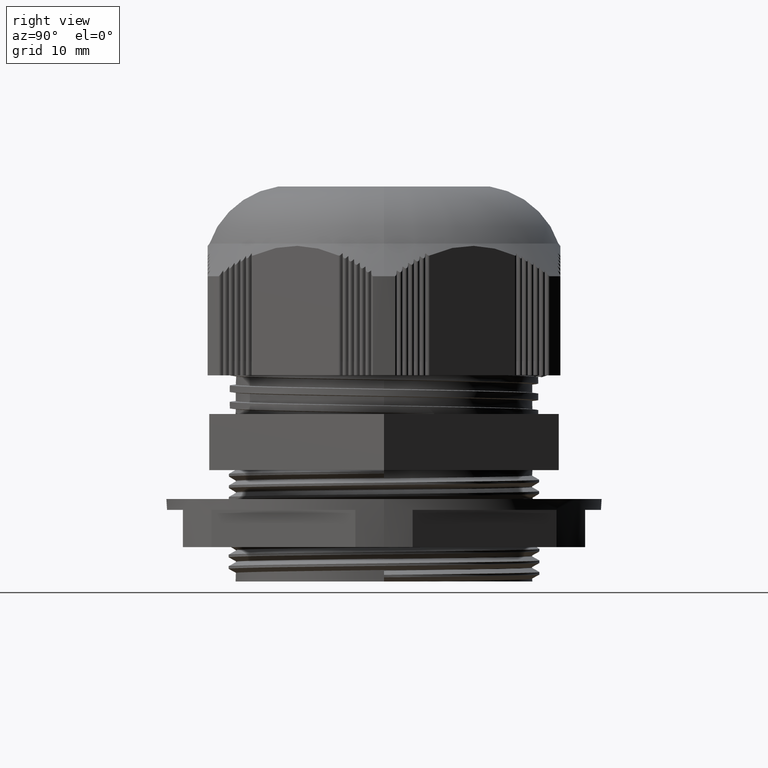
[diagram: clean part render]
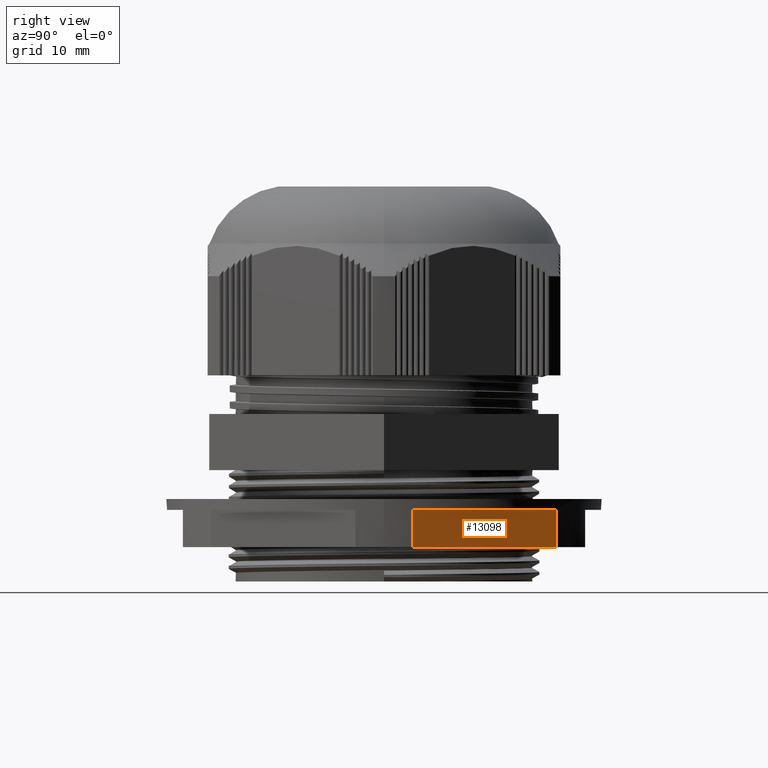
[diagram: same view with one face highlighted and labeled with its STEP entity id]
A machine part, right view. The second image highlights one B-rep face of the part: STEP entity #13098.
In plain terms, the highlighted planar face has unit normal (-0.866, -0.5, 0).
Its self-contained STEP definition (entity closure, byte-faithful):
#644 = CARTESIAN_POINT ( 'NONE',  ( 20.11397323124830200, 26.16157642139759100, 12.51966510091093100 ) ) ;
#652 = LINE ( 'NONE', #644, #9369 ) ;
#693 = DIRECTION ( 'NONE',  ( -0.0000000000000000000, -0.0000000000000000000, -1.000000000000000000 ) ) ;
#3289 = LINE ( 'NONE', #3356, #9306 ) ;
#3340 = DIRECTION ( 'NONE',  ( 0.0000000000000000000, 0.0000000000000000000, 1.000000000000000000 ) ) ;
#3356 = CARTESIAN_POINT ( 'NONE',  ( 32.71357639960244500, 4.338423578602443900, 12.51966510091093100 ) ) ;
#3739 = VERTEX_POINT ( 'NONE', #16673 ) ;
#3740 = VERTEX_POINT ( 'NONE', #16664 ) ;
#3747 = VERTEX_POINT ( 'NONE', #16674 ) ;
#3762 = VERTEX_POINT ( 'NONE', #16666 ) ;
#6707 = DIRECTION ( 'NONE',  ( -0.8660254037844383700, -0.5000000000000004400, 0.0000000000000000000 ) ) ;
#6708 = DIRECTION ( 'NONE',  ( 0.5000000000000004400, -0.8660254037844383700, 0.0000000000000000000 ) ) ;
#6711 = CARTESIAN_POINT ( 'NONE',  ( 35.07402885326977300, 0.2500000000000071600, 12.51966510091093100 ) ) ;
#6738 = PLANE ( 'NONE',  #8899 ) ;
#6757 = FACE_OUTER_BOUND ( 'NONE', #20162, .T. ) ;
#8899 = AXIS2_PLACEMENT_3D ( 'NONE', #6711, #6707, #6708 ) ;
#9306 = VECTOR ( 'NONE', #3340, 1000.000000000000000 ) ;
#9369 = VECTOR ( 'NONE', #693, 1000.000000000000000 ) ;
#13098 = ADVANCED_FACE ( 'NONE', ( #6757 ), #6738, .F. ) ;
#13338 = EDGE_CURVE ( 'NONE', #3740, #3739, #3289, .T. ) ;
#13405 = EDGE_CURVE ( 'NONE', #3762, #3747, #652, .T. ) ;
#13945 = EDGE_CURVE ( 'NONE', #3740, #3747, #22029, .T. ) ;
#13957 = EDGE_CURVE ( 'NONE', #3739, #3762, #22152, .T. ) ;
#16664 = CARTESIAN_POINT ( 'NONE',  ( 32.71357639960244500, 4.338423578602443900, 5.219665100910932900 ) ) ;
#16666 = CARTESIAN_POINT ( 'NONE',  ( 20.11397323124830200, 26.16157642139759400, 10.86966510091093200 ) ) ;
#16673 = CARTESIAN_POINT ( 'NONE',  ( 32.71357639960244500, 4.338423578602443000, 10.86966510091093200 ) ) ;
#16674 = CARTESIAN_POINT ( 'NONE',  ( 20.11397323124830200, 26.16157642139759100, 5.219665100910932900 ) ) ;
#20068 = ORIENTED_EDGE ( 'NONE', *, *, #13405, .F. ) ;
#20095 = ORIENTED_EDGE ( 'NONE', *, *, #13338, .F. ) ;
#20099 = ORIENTED_EDGE ( 'NONE', *, *, #13945, .T. ) ;
#20100 = ORIENTED_EDGE ( 'NONE', *, *, #13957, .F. ) ;
#20162 = EDGE_LOOP ( 'NONE', ( #20099, #20068, #20100, #20095 ) ) ;
#22005 = DIRECTION ( 'NONE',  ( -0.5000000000000004400, 0.8660254037844383700, 0.0000000000000000000 ) ) ;
#22029 = LINE ( 'NONE', #22033, #24451 ) ;
#22033 = CARTESIAN_POINT ( 'NONE',  ( 35.07402885326977300, 0.2500000000000071600, 5.219665100910932900 ) ) ;
#22152 = LINE ( 'NONE', #22182, #23758 ) ;
#22182 = CARTESIAN_POINT ( 'NONE',  ( 35.07402885326977300, 0.2500000000000071600, 10.86966510091093200 ) ) ;
#22210 = DIRECTION ( 'NONE',  ( -0.5000000000000004400, 0.8660254037844383700, -0.0000000000000000000 ) ) ;
#23758 = VECTOR ( 'NONE', #22210, 1000.000000000000000 ) ;
#24451 = VECTOR ( 'NONE', #22005, 1000.000000000000000 ) ;